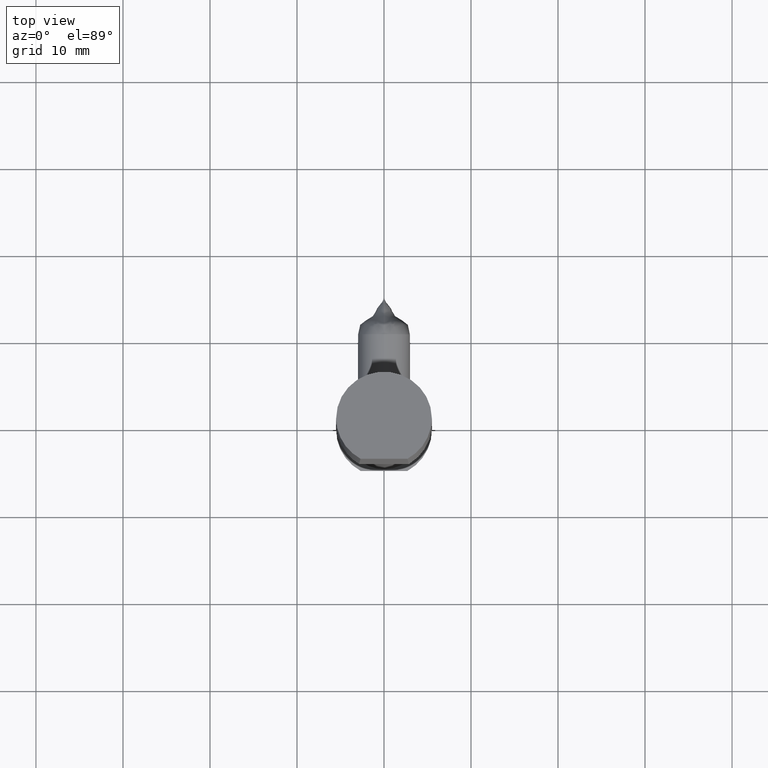
[diagram: clean part render]
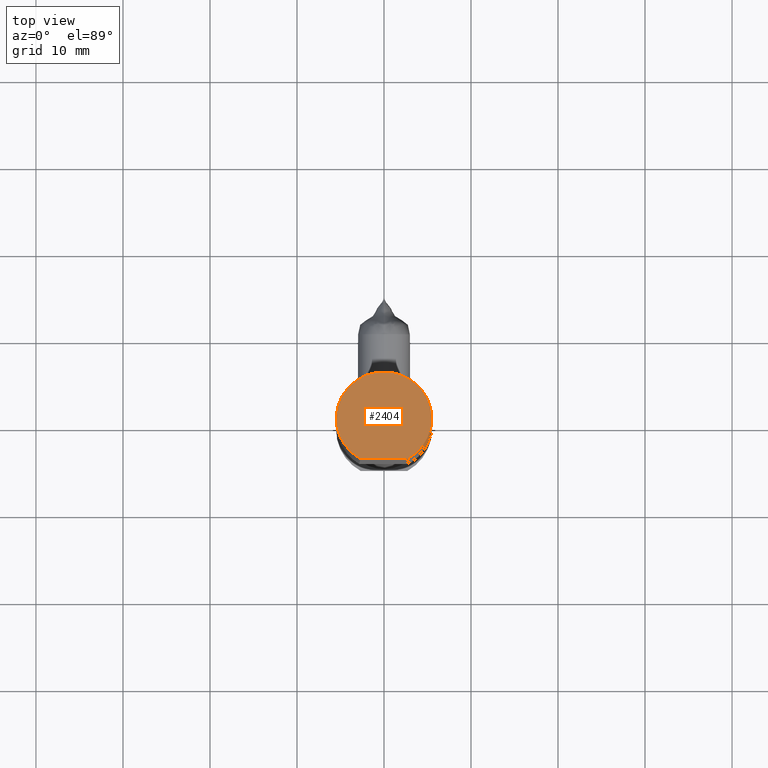
[diagram: same view with one face highlighted and labeled with its STEP entity id]
A machine part, top view. The second image highlights one B-rep face of the part: STEP entity #2404.
In plain terms, the highlighted planar face has unit normal (0, -0.225, -0.9744).
Its self-contained STEP definition (entity closure, byte-faithful):
#278 = CARTESIAN_POINT ( 'NONE',  ( 5.499999999999999100, -1.401331307937514500E-014, 39.46763557987382900 ) ) ;
#907 = CARTESIAN_POINT ( 'NONE',  ( 2.692033081535048400, -4.673215139754163700, 40.54653230592943200 ) ) ;
#908 = DIRECTION ( 'NONE',  ( -1.000000000000000000, 4.701784646652799900E-017, 0.0000000000000000000 ) ) ;
#909 = DIRECTION ( 'NONE',  ( 1.772186124182901200E-018, -0.2249510543438579500, -0.9743700647852370200 ) ) ;
#910 = CARTESIAN_POINT ( 'NONE',  ( -4.907663022819033900E-016, -1.423015351387224600E-014, 39.46763557987382900 ) ) ;
#911 = AXIS2_PLACEMENT_3D ( 'NONE', #910, #909, #908 ) ;
#912 = CIRCLE ( 'NONE', #911, 5.500000000000000000 ) ;
#930 = FACE_OUTER_BOUND ( 'NONE', #2405, .T. ) ;
#931 = DIRECTION ( 'NONE',  ( -1.000000000000000000, 4.701784646652799900E-017, 0.0000000000000000000 ) ) ;
#932 = DIRECTION ( 'NONE',  ( 1.772186124182901200E-018, -0.2249510543438579500, -0.9743700647852370200 ) ) ;
#933 = AXIS2_PLACEMENT_3D ( 'NONE', #941, #932, #931 ) ;
#934 = CIRCLE ( 'NONE', #933, 5.500000000000000000 ) ;
#941 = CARTESIAN_POINT ( 'NONE',  ( -4.907663022819033900E-016, -1.423015351387224600E-014, 39.46763557987382900 ) ) ;
#942 = CARTESIAN_POINT ( 'NONE',  ( -2.692033081535050200, -4.673215139754163700, 40.54653230592943200 ) ) ;
#970 = CARTESIAN_POINT ( 'NONE',  ( -5.500000000000000900, -1.303753112413819100E-014, 39.46763557987382900 ) ) ;
#979 = DIRECTION ( 'NONE',  ( -1.000000000000000000, 4.701784646652799900E-017, 0.0000000000000000000 ) ) ;
#980 = DIRECTION ( 'NONE',  ( 1.772186124182901200E-018, -0.2249510543438579500, -0.9743700647852370200 ) ) ;
#981 = CARTESIAN_POINT ( 'NONE',  ( -4.907663022819033900E-016, -1.423015351387224600E-014, 39.46763557987382900 ) ) ;
#982 = AXIS2_PLACEMENT_3D ( 'NONE', #981, #980, #979 ) ;
#984 = DIRECTION ( 'NONE',  ( -1.000000000000000000, 4.701784646652794400E-017, -1.267372706336974900E-017 ) ) ;
#985 = DIRECTION ( 'NONE',  ( 1.772186124182897800E-018, -0.2249510543438579300, -0.9743700647852369100 ) ) ;
#986 = CARTESIAN_POINT ( 'NONE',  ( -4.907663022819033900E-016, -1.423015351387224600E-014, 39.46763557987382900 ) ) ;
#987 = AXIS2_PLACEMENT_3D ( 'NONE', #986, #985, #984 ) ;
#988 = CIRCLE ( 'NONE', #982, 5.500000000000000000 ) ;
#989 = PLANE ( 'NONE',  #987 ) ;
#1046 = DIRECTION ( 'NONE',  ( 1.000000000000000000, -4.701784646652795000E-017, 1.267372706336975100E-017 ) ) ;
#1047 = VECTOR ( 'NONE', #1046, 1000.000000000000000 ) ;
#1048 = CARTESIAN_POINT ( 'NONE',  ( -7.241644568635098500E-016, -4.673215139754165500, 40.54653230592943200 ) ) ;
#1049 = LINE ( 'NONE', #1048, #1047 ) ;
#2316 = VERTEX_POINT ( 'NONE', #278 ) ;
#2368 = EDGE_CURVE ( 'NONE', #2316, #2369, #912, .T. ) ;
#2369 = VERTEX_POINT ( 'NONE', #907 ) ;
#2379 = ORIENTED_EDGE ( 'NONE', *, *, #2403, .F. ) ;
#2380 = ORIENTED_EDGE ( 'NONE', *, *, #2381, .T. ) ;
#2381 = EDGE_CURVE ( 'NONE', #2401, #2369, #1049, .T. ) ;
#2401 = VERTEX_POINT ( 'NONE', #942 ) ;
#2403 = EDGE_CURVE ( 'NONE', #2401, #2416, #934, .T. ) ;
#2404 = ADVANCED_FACE ( 'NONE', ( #930 ), #989, .F. ) ;
#2405 = EDGE_LOOP ( 'NONE', ( #2379, #2380, #2580, #2597 ) ) ;
#2407 = EDGE_CURVE ( 'NONE', #2416, #2316, #988, .T. ) ;
#2416 = VERTEX_POINT ( 'NONE', #970 ) ;
#2580 = ORIENTED_EDGE ( 'NONE', *, *, #2368, .F. ) ;
#2597 = ORIENTED_EDGE ( 'NONE', *, *, #2407, .F. ) ;